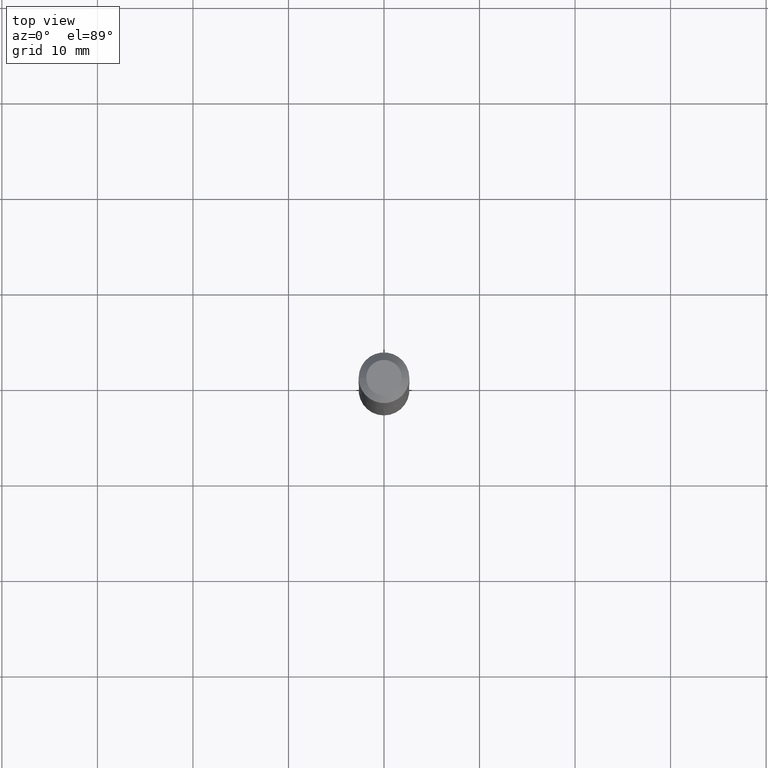
[diagram: clean part render]
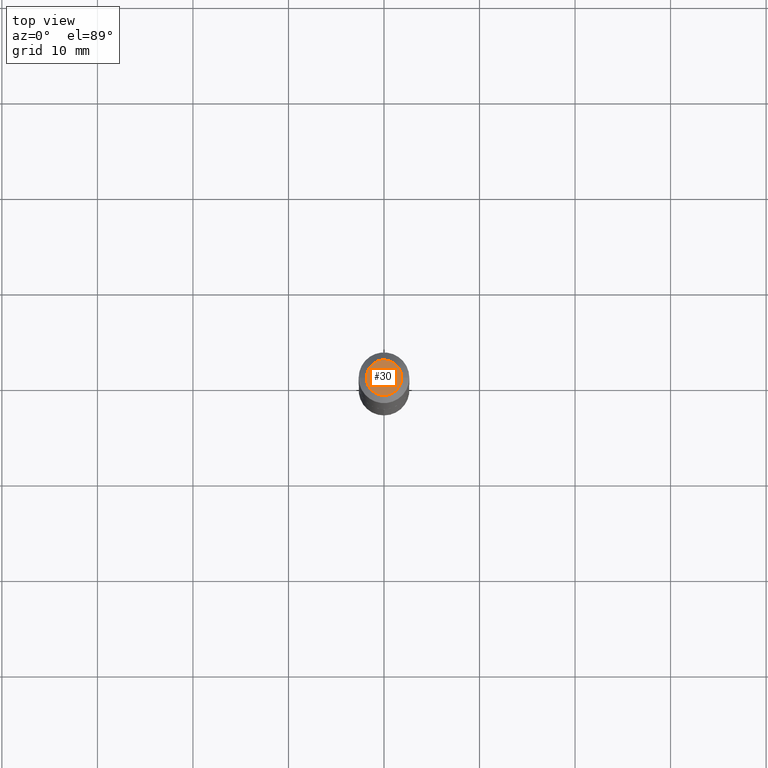
[diagram: same view with one face highlighted and labeled with its STEP entity id]
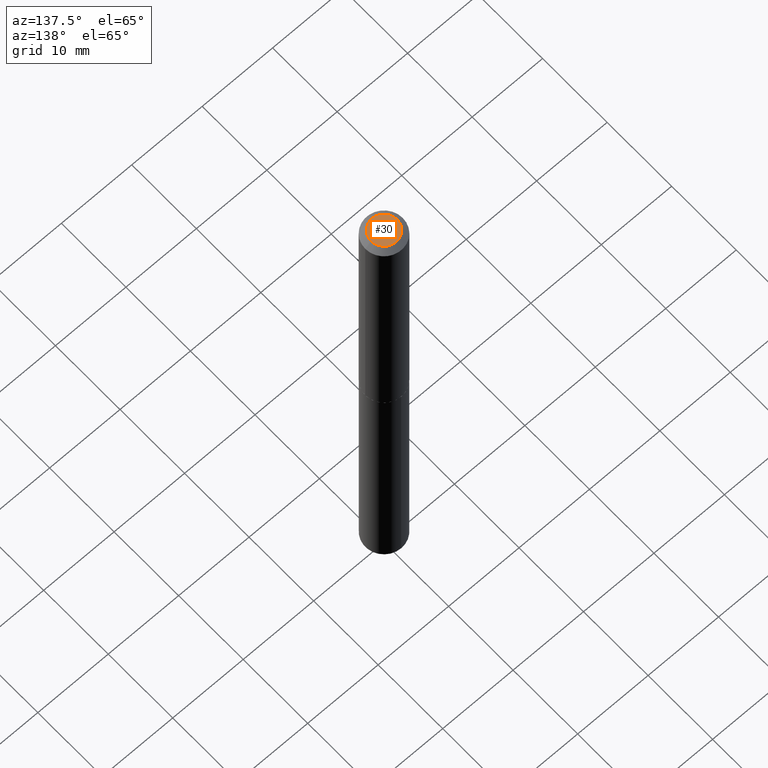
[diagram: same view with one face highlighted and labeled with its STEP entity id]
A machine part, top view. The second image highlights one B-rep face of the part: STEP entity #30.
A second angle (auxiliary view) of the same face is appended — the face is thin or edge-on in the first view.
In plain terms, the highlighted planar face has unit normal (0, -0, -1).
Its self-contained STEP definition (entity closure, byte-faithful):
#6 = EDGE_CURVE ( 'NONE', #179, #195, #211, .T. ) ;
#13 = ORIENTED_EDGE ( 'NONE', *, *, #194, .T. ) ;
#30 = ADVANCED_FACE ( 'NONE', ( #268 ), #87, .F. ) ;
#62 = AXIS2_PLACEMENT_3D ( 'NONE', #170, #359, #386 ) ;
#86 = DIRECTION ( 'NONE',  ( -2.445468806185136597E-29, 3.491481338843145583E-15, 1.000000000000000000 ) ) ;
#87 = PLANE ( 'NONE',  #234 ) ;
#117 = CARTESIAN_POINT ( 'NONE',  ( -0.07324999999999998179, 5.660564120599423523E-16, -2.449293598332392884E-19 ) ) ;
#164 = EDGE_LOOP ( 'NONE', ( #299, #13 ) ) ;
#170 = CARTESIAN_POINT ( 'NONE',  ( 5.989671091818676413E-48, -8.551662891793981134E-34, -2.449293598294715917E-19 ) ) ;
#179 = VERTEX_POINT ( 'NONE', #117 ) ;
#194 = EDGE_CURVE ( 'NONE', #195, #179, #381, .T. ) ;
#195 = VERTEX_POINT ( 'NONE', #246 ) ;
#198 = CARTESIAN_POINT ( 'NONE',  ( 2.994835545909338206E-48, -4.275831445896990567E-34, -1.224646799147357958E-19 ) ) ;
#211 = CIRCLE ( 'NONE', #62, 0.07324999999999998179 ) ;
#234 = AXIS2_PLACEMENT_3D ( 'NONE', #198, #301, #390 ) ;
#246 = CARTESIAN_POINT ( 'NONE',  ( 0.07324999999999998179, -6.642811554713692475E-16, -2.449293598253609831E-19 ) ) ;
#268 = FACE_OUTER_BOUND ( 'NONE', #164, .T. ) ;
#295 = AXIS2_PLACEMENT_3D ( 'NONE', #362, #86, #338 ) ;
#299 = ORIENTED_EDGE ( 'NONE', *, *, #6, .T. ) ;
#301 = DIRECTION ( 'NONE',  ( 2.438088387897960049E-29, -3.491481338843145188E-15, -1.000000000000000000 ) ) ;
#338 = DIRECTION ( 'NONE',  ( 1.000000000000000000, -6.982962677686267499E-15, 4.876156912890878962E-29 ) ) ;
#359 = DIRECTION ( 'NONE',  ( -2.445468806185136597E-29, 3.491481338843145583E-15, 1.000000000000000000 ) ) ;
#362 = CARTESIAN_POINT ( 'NONE',  ( 5.989671091818676413E-48, -8.551662891793981134E-34, -2.449293598294715917E-19 ) ) ;
#381 = CIRCLE ( 'NONE', #295, 0.07324999999999998179 ) ;
#386 = DIRECTION ( 'NONE',  ( 1.000000000000000000, -6.982962677686267499E-15, 4.876156912890878962E-29 ) ) ;
#390 = DIRECTION ( 'NONE',  ( -1.000000000000000000, 6.982962677686265922E-15, -4.876176775795935793E-29 ) ) ;